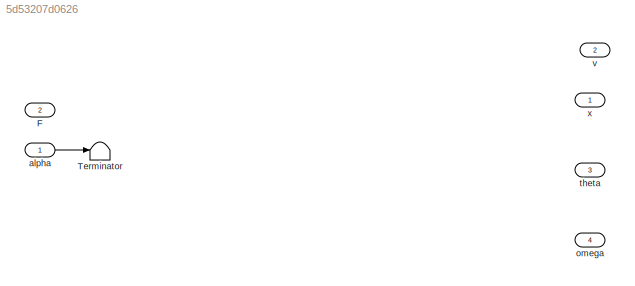
MODEL slx_5d53207d0626
KIND model
CONFIG AbsTol = auto
CONFIG EnableMultiTasking = off
CONFIG FixedStep = auto
CONFIG MaxStep = auto
CONFIG MinStep = auto
CONFIG RelTol = 1e-3
CONFIG SampleTimeConstraint = Unconstrained
CONFIG Solver = VariableStepAuto
CONFIG SolverName = VariableStepAuto
CONFIG StartTime = 0.0
CONFIG StopTime = 10.0
BLOCK [Inport] F
  IconDisplay = Port number
  Port = 2
BLOCK [Terminator] Terminator
BLOCK [Inport] alpha
  IconDisplay = Port number
BLOCK [Outport] omega
  IconDisplay = Port number
  Port = 4
BLOCK [Outport] theta
  IconDisplay = Port number
  Port = 3
BLOCK [Outport] v
  IconDisplay = Port number
  Port = 2
BLOCK [Outport] x
  IconDisplay = Port number
LINE alpha:1 -> Terminator:1
